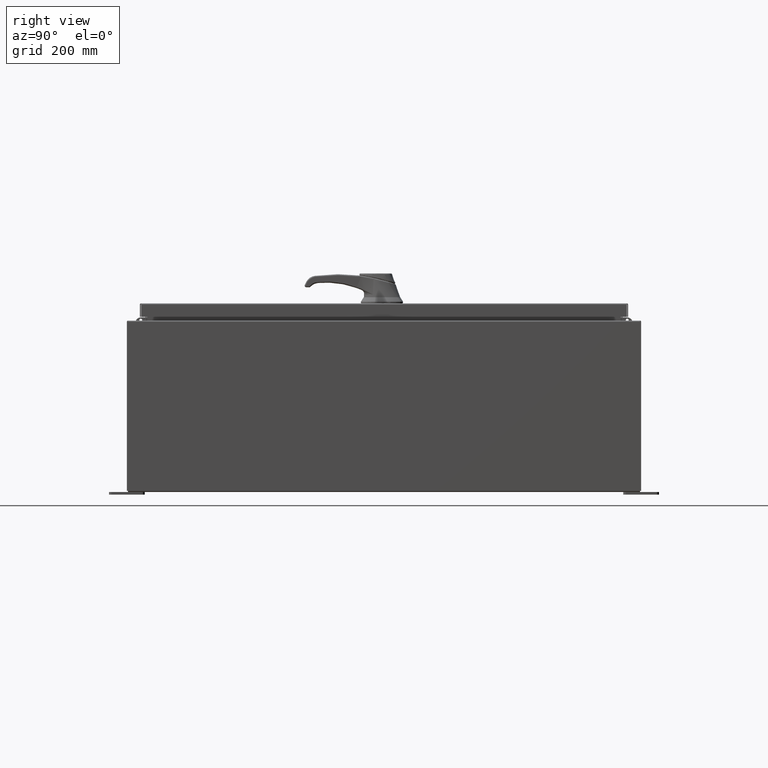
[diagram: clean part render]
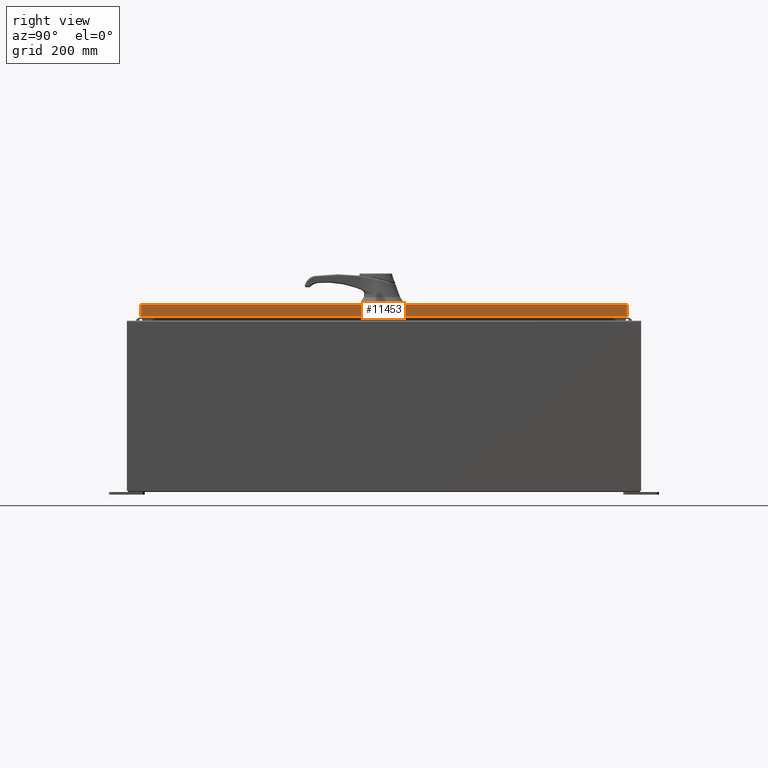
[diagram: same view with one face highlighted and labeled with its STEP entity id]
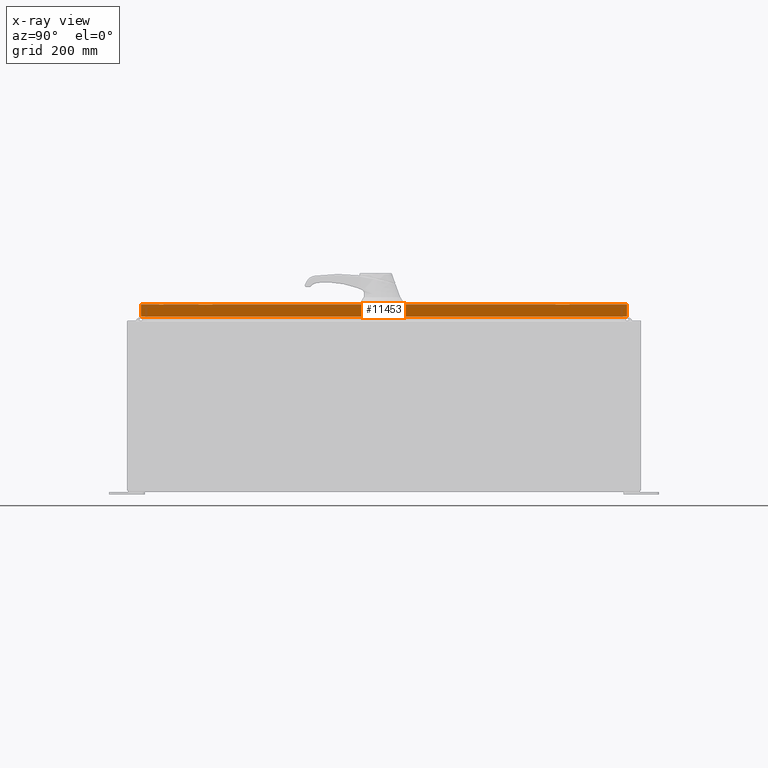
[diagram: x-ray of the same camera — body ghosted, the highlighted face saturated]
A machine part, right view. The second image highlights one B-rep face of the part: STEP entity #11453.
The next image is the same camera in x-ray: the body ghosted, the highlighted face saturated — about 0% of this face is hidden behind the body in this view.
In plain terms, the highlighted planar face has unit normal (1, 0, 0).
Its self-contained STEP definition (entity closure, byte-faithful):
#5439 = CARTESIAN_POINT ( 'NONE',  ( 14.07799999999999400, 17.00515786437626900, -0.08770000000000008300 ) ) ;
#8963 = DIRECTION ( 'NONE',  ( 0.0000000000000000000, -1.000000000000000000, 0.0000000000000000000 ) ) ;
#11453 = ADVANCED_FACE ( 'NONE', ( #15493 ), #90519, .T. ) ;
#12100 = AXIS2_PLACEMENT_3D ( 'NONE', #52347, #14113, #81292 ) ;
#14113 = DIRECTION ( 'NONE',  ( 1.000000000000000000, 0.0000000000000000000, 2.532419924601866100E-015 ) ) ;
#15493 = FACE_OUTER_BOUND ( 'NONE', #123019, .T. ) ;
#16506 = EDGE_CURVE ( 'NONE', #31319, #121105, #29221, .T. ) ;
#18558 = CARTESIAN_POINT ( 'NONE',  ( 14.07799999999999600, -17.09400000000000100, -0.9376999999999997600 ) ) ;
#20444 = VECTOR ( 'NONE', #58050, 39.37007874015748100 ) ;
#25936 = CARTESIAN_POINT ( 'NONE',  ( 14.07799999999999400, 0.0000000000000000000, -0.08770000000000008300 ) ) ;
#28651 = VERTEX_POINT ( 'NONE', #90941 ) ;
#29221 = LINE ( 'NONE', #36723, #99813 ) ;
#31319 = VERTEX_POINT ( 'NONE', #90488 ) ;
#36723 = CARTESIAN_POINT ( 'NONE',  ( 14.07799999999999400, 17.00515786437627200, 1.546586040496592500E-013 ) ) ;
#45261 = VERTEX_POINT ( 'NONE', #78536 ) ;
#46384 = DIRECTION ( 'NONE',  ( -2.532419924601866100E-015, -6.982962677686265900E-015, 1.000000000000000000 ) ) ;
#48410 = CARTESIAN_POINT ( 'NONE',  ( 14.07799999999999400, -17.00515786437626900, -0.07469999999999980800 ) ) ;
#49550 = LINE ( 'NONE', #18558, #97544 ) ;
#50627 = VECTOR ( 'NONE', #91442, 39.37007874015748100 ) ;
#52347 = CARTESIAN_POINT ( 'NONE',  ( 14.07799999999999400, 0.0000000000000000000, 3.591222135455663800E-014 ) ) ;
#56747 = EDGE_CURVE ( 'NONE', #31319, #45261, #49550, .T. ) ;
#58050 = DIRECTION ( 'NONE',  ( -2.532419924601866100E-015, -6.982962677686265900E-015, 1.000000000000000000 ) ) ;
#59750 = EDGE_CURVE ( 'NONE', #121105, #28651, #79153, .T. ) ;
#78536 = CARTESIAN_POINT ( 'NONE',  ( 14.07799999999999600, -17.00515786437626200, -0.9376999999999997600 ) ) ;
#79153 = LINE ( 'NONE', #25936, #50627 ) ;
#81292 = DIRECTION ( 'NONE',  ( 2.532419924601866100E-015, 0.0000000000000000000, -1.000000000000000000 ) ) ;
#87585 = ORIENTED_EDGE ( 'NONE', *, *, #16506, .T. ) ;
#90488 = CARTESIAN_POINT ( 'NONE',  ( 14.07799999999999600, 17.00515786437627600, -0.9376999999999997600 ) ) ;
#90519 = PLANE ( 'NONE',  #12100 ) ;
#90941 = CARTESIAN_POINT ( 'NONE',  ( 14.07799999999999400, -17.00515786437626900, -0.08770000000000008300 ) ) ;
#91442 = DIRECTION ( 'NONE',  ( 0.0000000000000000000, -1.000000000000000000, 0.0000000000000000000 ) ) ;
#97544 = VECTOR ( 'NONE', #8963, 39.37007874015748100 ) ;
#99813 = VECTOR ( 'NONE', #46384, 39.37007874015748100 ) ;
#106210 = EDGE_CURVE ( 'NONE', #45261, #28651, #122559, .T. ) ;
#110199 = ORIENTED_EDGE ( 'NONE', *, *, #106210, .F. ) ;
#114405 = ORIENTED_EDGE ( 'NONE', *, *, #59750, .T. ) ;
#115721 = ORIENTED_EDGE ( 'NONE', *, *, #56747, .F. ) ;
#121105 = VERTEX_POINT ( 'NONE', #5439 ) ;
#122559 = LINE ( 'NONE', #48410, #20444 ) ;
#123019 = EDGE_LOOP ( 'NONE', ( #110199, #115721, #87585, #114405 ) ) ;